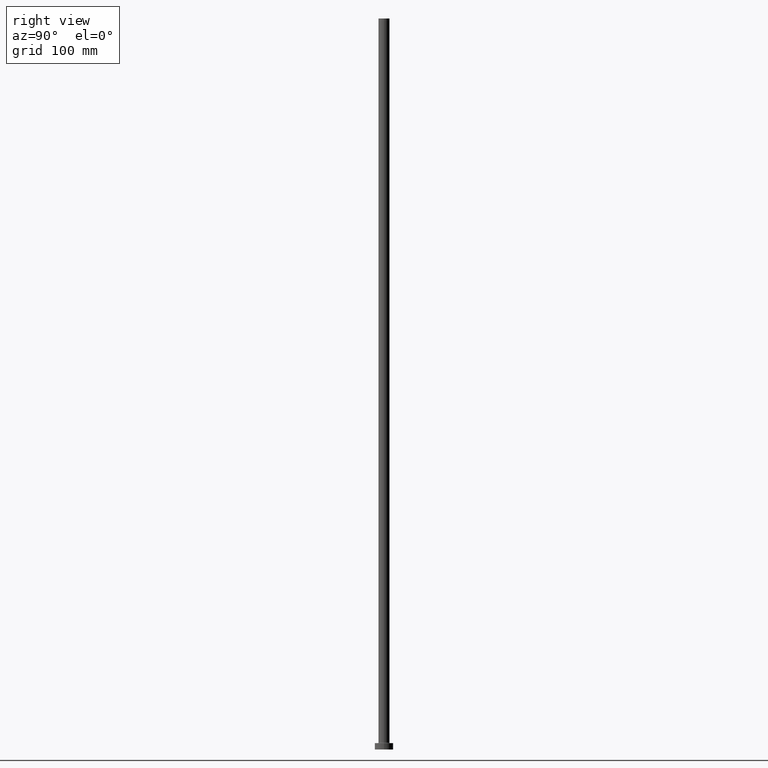
[diagram: clean part render]
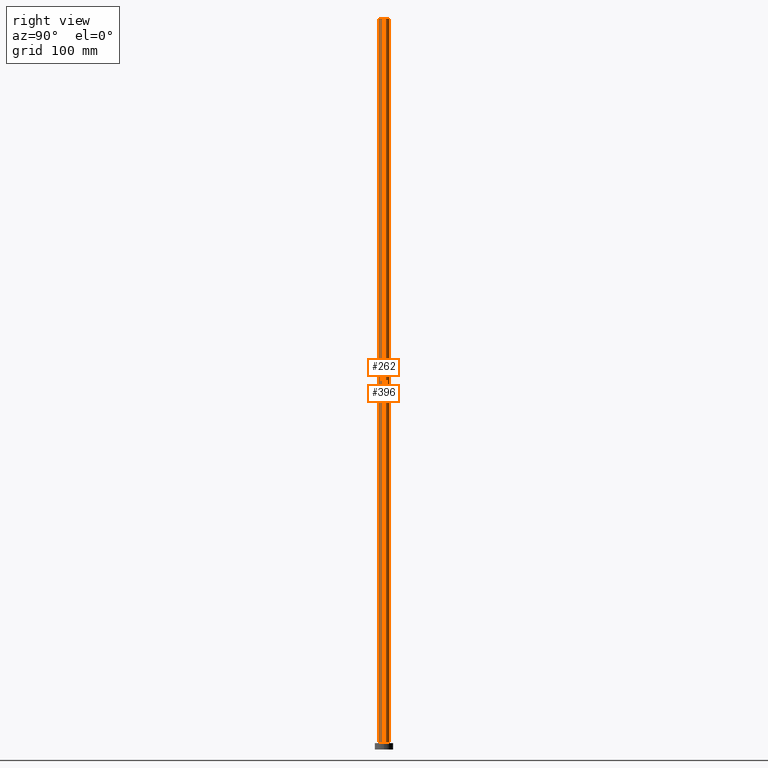
[diagram: same view with one multi-face feature highlighted, each face labeled with its STEP entity id]
A machine part, right view. The highlighted faces form ONE feature: a constant-radius fillet chain: 2 tangent blend faces with common blend radius 6 mm. The faces share edges in the B-rep.
Their STEP definitions:
[1] entity #262 (Cylinder):
#12 = ORIENTED_EDGE ( 'NONE', *, *, #63, .F. ) ;
#14 = CARTESIAN_POINT ( 'NONE',  ( 0.000000000000000000, 0.000000000000000000, 7.499999999999951150 ) ) ;
#38 = DIRECTION ( 'NONE',  ( -1.000000000000000000, 0.000000000000000000, 0.000000000000000000 ) ) ;
#63 = EDGE_CURVE ( 'NONE', #398, #158, #271, .T. ) ;
#86 = ORIENTED_EDGE ( 'NONE', *, *, #160, .F. ) ;
#96 = CARTESIAN_POINT ( 'NONE',  ( 0.000000000000000000, 0.000000000000000000, 800.0000000000000000 ) ) ;
#114 = CIRCLE ( 'NONE', #288, 6.000000000000000888 ) ;
#123 = VERTEX_POINT ( 'NONE', #311 ) ;
#128 = CARTESIAN_POINT ( 'NONE',  ( -6.000000000000000888, 0.000000000000000000, 800.0000000000000000 ) ) ;
#140 = CIRCLE ( 'NONE', #457, 6.000000000000000888 ) ;
#154 = ORIENTED_EDGE ( 'NONE', *, *, #306, .T. ) ;
#158 = VERTEX_POINT ( 'NONE', #411 ) ;
#159 = DIRECTION ( 'NONE',  ( -0.000000000000000000, -0.000000000000000000, -1.000000000000000000 ) ) ;
#160 = EDGE_CURVE ( 'NONE', #123, #398, #140, .T. ) ;
#186 = VERTEX_POINT ( 'NONE', #351 ) ;
#200 = DIRECTION ( 'NONE',  ( -0.000000000000000000, -0.000000000000000000, -1.000000000000000000 ) ) ;
#214 = VECTOR ( 'NONE', #159, 1000.000000000000000 ) ;
#217 = FACE_OUTER_BOUND ( 'NONE', #321, .T. ) ;
#262 = ADVANCED_FACE ( 'NONE', ( #217 ), #277, .T. ) ;
#265 = DIRECTION ( 'NONE',  ( 0.000000000000000000, 0.000000000000000000, 1.000000000000000000 ) ) ;
#271 = LINE ( 'NONE', #409, #427 ) ;
#277 = CYLINDRICAL_SURFACE ( 'NONE', #380, 6.000000000000000888 ) ;
#282 = DIRECTION ( 'NONE',  ( -0.000000000000000000, -0.000000000000000000, -1.000000000000000000 ) ) ;
#288 = AXIS2_PLACEMENT_3D ( 'NONE', #14, #265, #335 ) ;
#292 = ORIENTED_EDGE ( 'NONE', *, *, #328, .T. ) ;
#306 = EDGE_CURVE ( 'NONE', #186, #158, #114, .T. ) ;
#311 = CARTESIAN_POINT ( 'NONE',  ( -6.000000000000000888, 0.000000000000000000, 800.0000000000000000 ) ) ;
#321 = EDGE_LOOP ( 'NONE', ( #12, #86, #292, #154 ) ) ;
#328 = EDGE_CURVE ( 'NONE', #123, #186, #339, .T. ) ;
#335 = DIRECTION ( 'NONE',  ( 1.000000000000000000, 0.000000000000000000, 0.000000000000000000 ) ) ;
#339 = LINE ( 'NONE', #128, #214 ) ;
#342 = DIRECTION ( 'NONE',  ( 1.000000000000000000, 0.000000000000000000, 0.000000000000000000 ) ) ;
#344 = DIRECTION ( 'NONE',  ( 0.000000000000000000, 0.000000000000000000, 1.000000000000000000 ) ) ;
#351 = CARTESIAN_POINT ( 'NONE',  ( -6.000000000000000888, 0.000000000000000000, 7.499999999999951150 ) ) ;
#360 = CARTESIAN_POINT ( 'NONE',  ( 0.000000000000000000, 0.000000000000000000, 800.0000000000000000 ) ) ;
#380 = AXIS2_PLACEMENT_3D ( 'NONE', #360, #282, #38 ) ;
#398 = VERTEX_POINT ( 'NONE', #442 ) ;
#409 = CARTESIAN_POINT ( 'NONE',  ( 6.000000000000000888, 7.347880794884120722E-16, 800.0000000000000000 ) ) ;
#411 = CARTESIAN_POINT ( 'NONE',  ( 6.000000000000000888, 7.347880794884120722E-16, 7.499999999999951150 ) ) ;
#427 = VECTOR ( 'NONE', #200, 1000.000000000000000 ) ;
#442 = CARTESIAN_POINT ( 'NONE',  ( 6.000000000000000888, 7.347880794884120722E-16, 800.0000000000000000 ) ) ;
#457 = AXIS2_PLACEMENT_3D ( 'NONE', #96, #344, #342 ) ;
[2] entity #396 (Cylinder):
#28 = AXIS2_PLACEMENT_3D ( 'NONE', #141, #281, #110 ) ;
#52 = CIRCLE ( 'NONE', #372, 6.000000000000000888 ) ;
#54 = CARTESIAN_POINT ( 'NONE',  ( 0.000000000000000000, 0.000000000000000000, 800.0000000000000000 ) ) ;
#57 = DIRECTION ( 'NONE',  ( -0.000000000000000000, -0.000000000000000000, -1.000000000000000000 ) ) ;
#63 = EDGE_CURVE ( 'NONE', #398, #158, #271, .T. ) ;
#110 = DIRECTION ( 'NONE',  ( 1.000000000000000000, 0.000000000000000000, 0.000000000000000000 ) ) ;
#123 = VERTEX_POINT ( 'NONE', #311 ) ;
#128 = CARTESIAN_POINT ( 'NONE',  ( -6.000000000000000888, 0.000000000000000000, 800.0000000000000000 ) ) ;
#129 = EDGE_CURVE ( 'NONE', #158, #186, #52, .T. ) ;
#141 = CARTESIAN_POINT ( 'NONE',  ( 0.000000000000000000, 0.000000000000000000, 800.0000000000000000 ) ) ;
#158 = VERTEX_POINT ( 'NONE', #411 ) ;
#159 = DIRECTION ( 'NONE',  ( -0.000000000000000000, -0.000000000000000000, -1.000000000000000000 ) ) ;
#186 = VERTEX_POINT ( 'NONE', #351 ) ;
#200 = DIRECTION ( 'NONE',  ( -0.000000000000000000, -0.000000000000000000, -1.000000000000000000 ) ) ;
#214 = VECTOR ( 'NONE', #159, 1000.000000000000000 ) ;
#229 = EDGE_CURVE ( 'NONE', #398, #123, #413, .T. ) ;
#231 = FACE_OUTER_BOUND ( 'NONE', #258, .T. ) ;
#232 = AXIS2_PLACEMENT_3D ( 'NONE', #54, #57, #236 ) ;
#236 = DIRECTION ( 'NONE',  ( -1.000000000000000000, 0.000000000000000000, 0.000000000000000000 ) ) ;
#258 = EDGE_LOOP ( 'NONE', ( #324, #399, #432, #365 ) ) ;
#266 = CYLINDRICAL_SURFACE ( 'NONE', #232, 6.000000000000000888 ) ;
#271 = LINE ( 'NONE', #409, #427 ) ;
#281 = DIRECTION ( 'NONE',  ( 0.000000000000000000, 0.000000000000000000, 1.000000000000000000 ) ) ;
#311 = CARTESIAN_POINT ( 'NONE',  ( -6.000000000000000888, 0.000000000000000000, 800.0000000000000000 ) ) ;
#313 = CARTESIAN_POINT ( 'NONE',  ( 0.000000000000000000, 0.000000000000000000, 7.499999999999951150 ) ) ;
#324 = ORIENTED_EDGE ( 'NONE', *, *, #229, .F. ) ;
#328 = EDGE_CURVE ( 'NONE', #123, #186, #339, .T. ) ;
#339 = LINE ( 'NONE', #128, #214 ) ;
#351 = CARTESIAN_POINT ( 'NONE',  ( -6.000000000000000888, 0.000000000000000000, 7.499999999999951150 ) ) ;
#365 = ORIENTED_EDGE ( 'NONE', *, *, #328, .F. ) ;
#372 = AXIS2_PLACEMENT_3D ( 'NONE', #313, #412, #454 ) ;
#396 = ADVANCED_FACE ( 'NONE', ( #231 ), #266, .T. ) ;
#398 = VERTEX_POINT ( 'NONE', #442 ) ;
#399 = ORIENTED_EDGE ( 'NONE', *, *, #63, .T. ) ;
#409 = CARTESIAN_POINT ( 'NONE',  ( 6.000000000000000888, 7.347880794884120722E-16, 800.0000000000000000 ) ) ;
#411 = CARTESIAN_POINT ( 'NONE',  ( 6.000000000000000888, 7.347880794884120722E-16, 7.499999999999951150 ) ) ;
#412 = DIRECTION ( 'NONE',  ( 0.000000000000000000, 0.000000000000000000, 1.000000000000000000 ) ) ;
#413 = CIRCLE ( 'NONE', #28, 6.000000000000000888 ) ;
#427 = VECTOR ( 'NONE', #200, 1000.000000000000000 ) ;
#432 = ORIENTED_EDGE ( 'NONE', *, *, #129, .T. ) ;
#442 = CARTESIAN_POINT ( 'NONE',  ( 6.000000000000000888, 7.347880794884120722E-16, 800.0000000000000000 ) ) ;
#454 = DIRECTION ( 'NONE',  ( 1.000000000000000000, 0.000000000000000000, 0.000000000000000000 ) ) ;